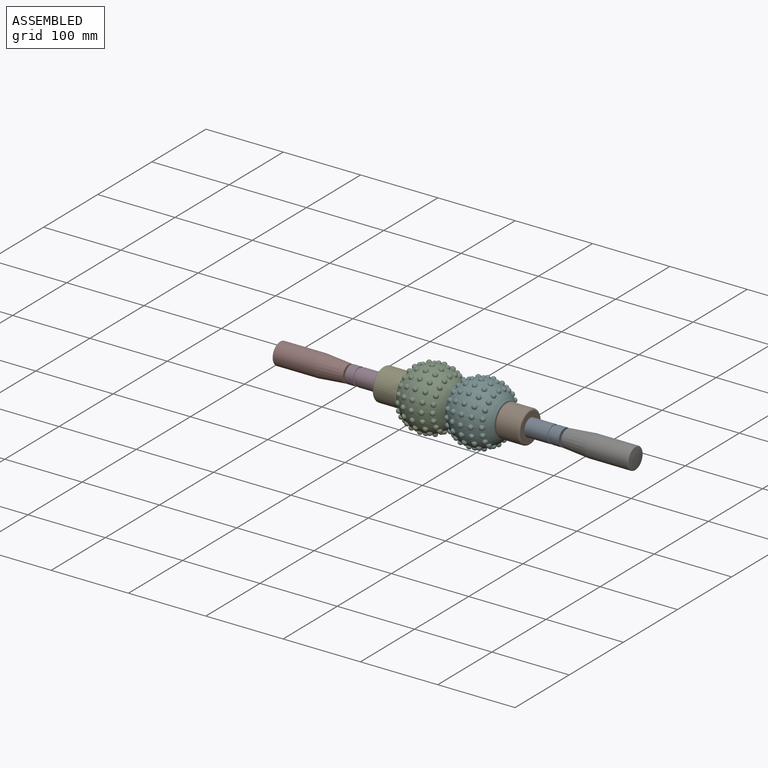
[diagram: assembled view]
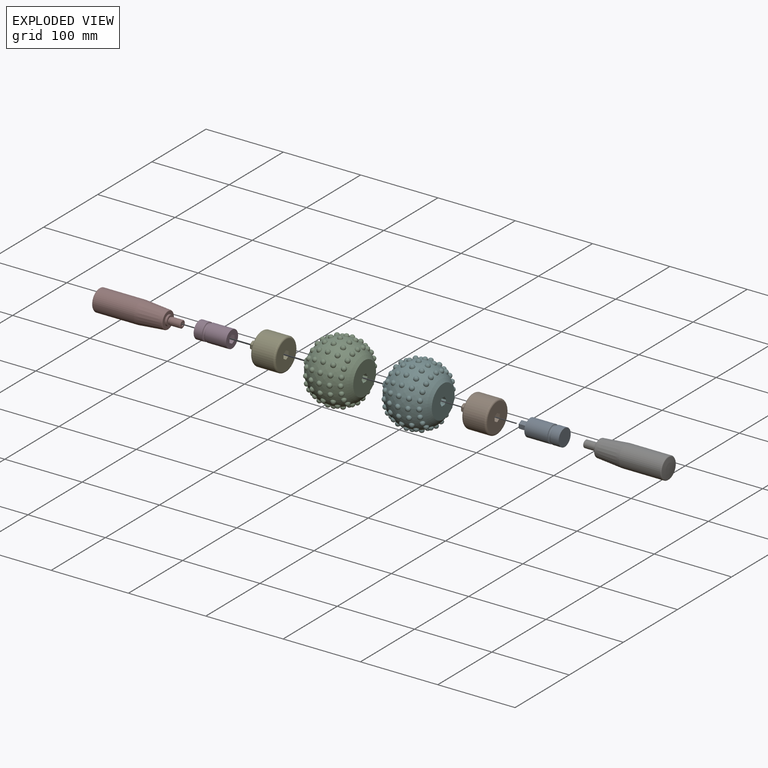
[diagram: exploded view]
GUIDED TOUR — MATED ASSEMBLY WITH SUBASSEMBLIES (Onshape document 25d12aa0dbe9cc3b2624c550, AutoMate assembly 25d12aa0dbe9cc3b2624c550_762bee8474b83015962dd6f4_f0a45906b147f34d450d7390_default)

This assembly has 10 component occurrences arranged in 8 top-level units: 6 individual components plus 2 subassemblies (S0, S1). The tour has two levels: first the top level, where each subassembly is treated as one rigid unit; then each subassembly is toured internally in its own section (nesting deeper than one subassembly level is flattened into its subassembly's section).

Components are labeled P0..P9 across the whole record; subassembly units are labeled S0..S1. A mate is a constraint between two units; its type names the relative motion it leaves free:
  FASTENED — locks the two components together rigidly (no relative motion),
  REVOLUTE — leaves rotation about the listed axis free (a hinge).
Axis/direction vectors are unit vectors and 'through' points are millimeter coordinates, both in the assembly's world frame.

TOP-LEVEL MATES (between units; each subassembly's internal mates are listed in its own section)
  1. FASTENED "Fastened 2": P0 <-> S0, direction (-1.000, 0.000, 0.000) through (69.82, -0.23, -0.31) mm
  2. FASTENED "Fastened 5": P3 <-> S1, direction (1.000, 0.000, 0.000) through (-120.67, -0.23, -0.31) mm
  3. REVOLUTE "Revolute 2": P3 <-> P8, axis (-1.000, 0.000, 0.000) through (-162.62, -0.23, -0.31) mm
  4. FASTENED "Fastened 4": P2 <-> S1, direction (-1.000, 0.000, 0.000) through (-88.93, -0.23, -0.31) mm
  5. REVOLUTE "Revolute 1": P0 <-> P7, axis (1.000, 0.000, 0.000) through (114.27, -0.23, -0.31) mm
  6. FASTENED "Fastened 3": P2 <-> P6, direction (1.000, 0.000, 0.000) through (-25.43, -0.23, -0.31) mm
  7. FASTENED "Fastened 1": P6 <-> S0, direction (1.000, 0.000, 0.000) through (38.07, -0.23, -0.31) mm

TOP-LEVEL ASSEMBLY ORDER
  1. P0 — the base component [order heuristic]
  2. S0 [order heuristic]
  3. P7 [order heuristic]
  4. P6 [order heuristic]
  5. P2 [order heuristic]
  6. S1 [order heuristic]
  7. P3 [order heuristic]
  8. P8 [order heuristic]
Order-tag legend:
  [order heuristic] — this assembly is geometrically interlocked (no collision-free removal order exists), so components are listed in mate-graph order; insertion feasibility is not verified.

Of the 10 component occurrences, 6 carry the full construction recipe — the FeatureScript program that regenerates the part's solid from scratch; the rest are supplied as boundary geometry only. Each toured unit is shown spotlighted twice — assembled, then exploded with a leader line back to its socket (green = recipe-attached component, orange = geometry-only, blue = subassembly unit; the rest desaturated gray).
NOTE — document 2 of 2 of this assembly tour. The two overview renders and the header above are repeated from document 1; the component sections below continue where the previous document stopped.
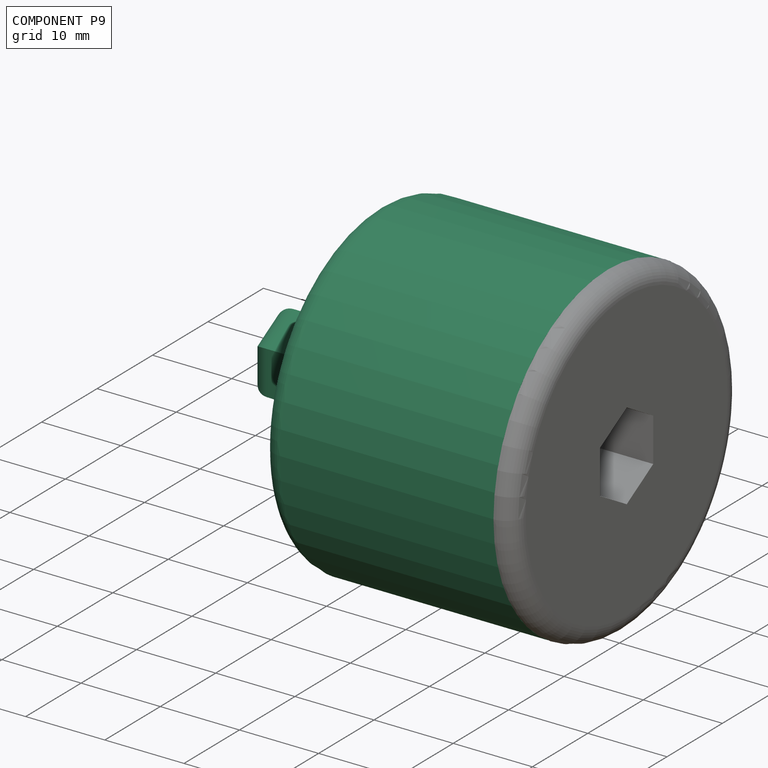
[diagram: component P9 — assembled]
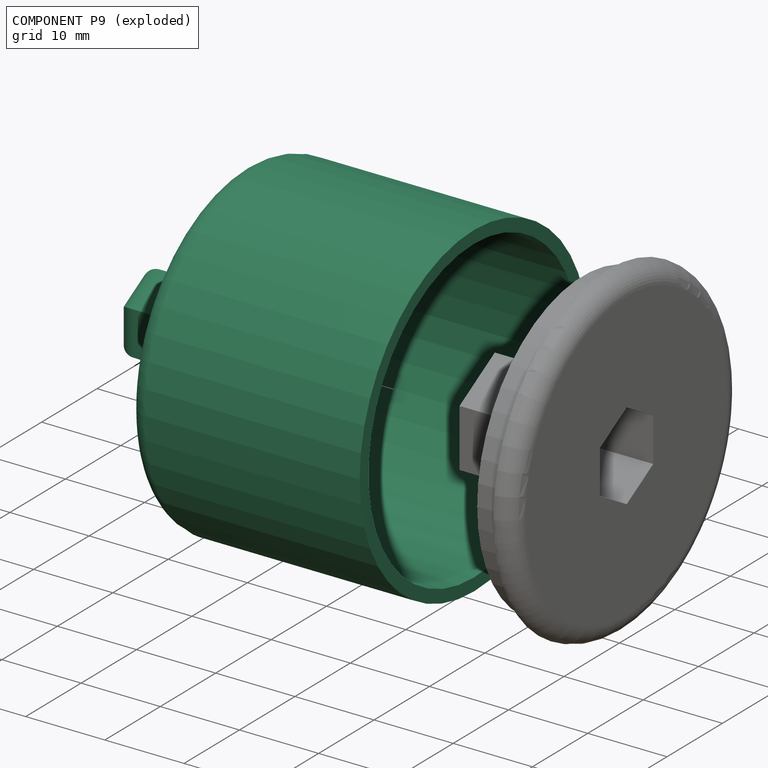
[diagram: component P9 — exploded]
COMPONENT P9 — recipe-attached (CADFS 00455740, mesh-verified: the recipe's output STEP matches this component's geometry to below the mesh-comparison resolution (tessellation chordal tolerance ~0.108 mm)).
Held by: FASTENED mate "Fastened 1" to P5; FASTENED mate "Fastened 1" to P5.
Construction recipe (FeatureScript — the CAD program that rebuilds this solid; sketch coordinates are in the units given by the * unit suffixes, e.g. mm):

FeatureScript 1511;
import(path : "onshape/std/geometry.fs", version : "1511.0");
import(path : "onshape/std/common.fs", version : "1511.0");
const mm = millimeter;
const VERTEX = EntityType.VERTEX;
const EDGE = EntityType.EDGE;
const FACE = EntityType.FACE;
const BODY = EntityType.BODY;
function v(x, y){return vector(x, y);}
function OD(order){return orderDisambiguation(order);}
function OSD(set){return originalSetDisambiguation(set);}
function TD(topology){return topologyDisambiguation(topology);}
function TDD(query){return trueDependencyDisambiguation(query);}
function sQuery(a, b, c) {return sketchEntityQuery(a, b, c);}

annotation { "Feature Type Name" : "Feature", "Feature Type Description" : "" }
export const myFeature = defineFeature(function(context is Context, id is Id, definition is map)
    precondition{}
    {
        {
            var Q0;
            Q0=qCreatedBy(makeId("Right.planeOp"),FACE);
            var sketch = newSketch(context, id + "F0", { "sketchPlane" : qUnion([Q0])});
            skCircle(sketch, "E0.cCircle", {"center": v(0, 0) * mm, "radius": 4.76 * mm, "construction": true});
            skLineSegment(sketch, "E0.0", {"start": v(4.76, 2.75) * mm, "end": v(4.76, -2.75) * mm});
            skLineSegment(sketch, "E0.1", {"start": v(4.76, -2.75) * mm, "end": v(0, -5.5) * mm});
            skLineSegment(sketch, "E0.2", {"start": v(0, -5.5) * mm, "end": v(-4.76, -2.75) * mm});
            skLineSegment(sketch, "E0.3", {"start": v(-4.76, -2.75) * mm, "end": v(-4.76, 2.75) * mm});
            skLineSegment(sketch, "E0.4", {"start": v(-4.76, 2.75) * mm, "end": v(0, 5.5) * mm});
            skLineSegment(sketch, "E0.5", {"start": v(0, 5.5) * mm, "end": v(4.76, 2.75) * mm});
            skPoint(sketch, "E0.0.midPoint", {"position": v(4.76, 0) * mm});
            skSolve(sketch);
        }
        {
            var Q0;
            Q0 = qSketchRegion(id + "F0", true);
            extrude(context, id + "F1", {"entities" : qUnion([Q0]), "depth" : 12.7 * mm});
        }
        {
            var Q0;
            Q0=makeQuery(id+"F1.opExtrude","CAP_FACE",FACE,{"disambiguationData":[OSD([sQuery(id+"F0.wireOp",EDGE,"E0.0"),sQuery(id+"F0.wireOp",EDGE,"E0.1"),sQuery(id+"F0.wireOp",EDGE,"E0.2"),sQuery(id+"F0.wireOp",EDGE,"E0.3"),sQuery(id+"F0.wireOp",EDGE,"E0.4"),sQuery(id+"F0.wireOp",EDGE,"E0.5")])],"isStart":false});
            var sketch = newSketch(context, id + "F2", { "sketchPlane" : qUnion([Q0])});
            skCircle(sketch, "E1", {"center": v(0, 0) * mm, "radius": 20.64 * mm});
            skSolve(sketch);
        }
        {
            var Q0;
            Q0 = qSketchRegion(id + "F2", true);
            extrude(context, id + "F3", {"entities" : qUnion([Q0]), "operationType" : NewBodyOperationType.ADD, "depth" : 29.36 * mm, "offsetDistance" : 25.4 * mm});
        }
        {
            var Q0;
            Q0=makeQuery(id+"F3.opExtrude","CAP_FACE",FACE,{"disambiguationData":[OSD([sQuery(id+"F2.wireOp",EDGE,"E1")])],"isStart":false});
            shell(context, id + "F4", {"entities" : qUnion([Q0]), "thickness" : 1.59 * mm});
        }
        {
            var Q0;
            {var subQ0=sQuery(id+"F2.wireOp",EDGE,"E1");Q0=makeQuery(id+"F4.opShell","OFFSET_EDGE",EDGE,{"disambiguationData":[OSD([subQ0]),TDD([makeQuery(id+"F3.opExtrude","CAP_EDGE",EDGE,{"disambiguationData":[OSD([subQ0])],"isStart":true})])]});}
            fillet(context, id + "F5", {"entities" : qUnion([Q0]), "radius" : 0.8 * mm, "tangentPropagation" : true, "allowEdgeOverflow" : false});
        }
        {
            var Q0;
            Q0=makeQuery(id+"F3.opExtrude","CAP_EDGE",EDGE,{"disambiguationData":[OSD([sQuery(id+"F2.wireOp",EDGE,"E1")])],"isStart":true});
            fillet(context, id + "F6", {"entities" : qUnion([Q0]), "radius" : 2.38 * mm, "tangentPropagation" : true, "allowEdgeOverflow" : false});
        }
        {
            var Q0;
            Q0=makeQuery(id+"F1.opExtrude","CAP_EDGE",EDGE,{"disambiguationData":[OSD([sQuery(id+"F0.wireOp",EDGE,"E0.5")])],"isStart":true});
            var Q1;
            Q1=makeQuery(id+"F1.opExtrude","CAP_EDGE",EDGE,{"disambiguationData":[OSD([sQuery(id+"F0.wireOp",EDGE,"E0.4")])],"isStart":true});
            var Q2;
            Q2=makeQuery(id+"F1.opExtrude","CAP_EDGE",EDGE,{"disambiguationData":[OSD([sQuery(id+"F0.wireOp",EDGE,"E0.3")])],"isStart":true});
            var Q3;
            Q3=makeQuery(id+"F1.opExtrude","CAP_EDGE",EDGE,{"disambiguationData":[OSD([sQuery(id+"F0.wireOp",EDGE,"E0.2")])],"isStart":true});
            var Q4;
            Q4=makeQuery(id+"F1.opExtrude","CAP_EDGE",EDGE,{"disambiguationData":[OSD([sQuery(id+"F0.wireOp",EDGE,"E0.1")])],"isStart":true});
            var Q5;
            Q5=makeQuery(id+"F1.opExtrude","CAP_EDGE",EDGE,{"disambiguationData":[OSD([sQuery(id+"F0.wireOp",EDGE,"E0.0")])],"isStart":true});
            fillet(context, id + "F7", {"entities" : qUnion([Q0, Q1, Q2, Q3, Q4, Q5]), "radius" : 2.38 * mm, "tangentPropagation" : true, "allowEdgeOverflow" : false});
        }
    });
PROVENANCE & LICENSES
Assembly (occurrences, transforms, mates, per-part STEP geometry): AutoMate dataset, Zenodo record 7776208, CC0.
Construction recipes: CADFS (HuggingFace VladPyatov/CADFS, CC-BY-4.0, layered over the ABC dataset), FeatureScript reconstruction programs keyed by ABC model id.
Join: ABC meta listings map ABC model id -> Onshape documentId; within a shared document, parts are matched by geometric signature (bounding-box dims + volume at 0.1% relative tolerance, exact B-rep face/solid counts).
Verification: 6 of this assembly's 10 components carry a recipe attachment, and every attachment is mesh-verified: the CADFS STEP and the AutoMate member STEP were compared as meshes in their shared local frame (symmetric sampled-point-to-mesh distance); worst across the 6 attachments: below the mesh-comparison resolution (tessellation chordal tolerance ~0.108 mm) on a 72 mm part.
Renders: orthographic iso camera (az 35 / el 25); the floor grid conveys scale (grid pitch printed in each image; no ruler). In the exploded view each component is displaced by its stored offset vector: the offsets alone carry the explosion direction (mate normal/axis signs are not orientation cues and do not encode it), and separation distances are assigned per mate-chain, not proportionally to assembly-order depth.
